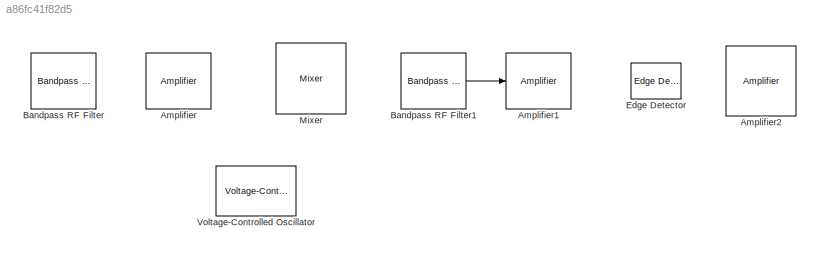
MODEL slx_a86fc41f82d5
KIND model
CONFIG AbsTol = auto
CONFIG FixedStep = auto
CONFIG MaxStep = auto
CONFIG MinStep = auto
CONFIG RelTol = 1e-3
CONFIG SampleTimeConstraint = Unconstrained
CONFIG Solver = VariableStepAuto
CONFIG SolverMode = Auto
CONFIG SolverName = VariableStepAuto
CONFIG StartTime = 0.0
CONFIG StopTime = 10.0
BLOCK [Reference] Amplifier  REF=rfmathmodels1/Amplifier
  Ports = [1, 1]
  SourceBlock = rfmathmodels1/Amplifier
  SourceType = Amplifier
BLOCK [Reference] Amplifier1  REF=rfmathmodels1/Amplifier
  Ports = [1, 1]
  SourceBlock = rfmathmodels1/Amplifier
  SourceType = Amplifier
BLOCK [Reference] Amplifier2  REF=simrfV2elements/Amplifier
  Ports = [0, 0, 0, 0, 0, 1, 1]
  SourceBlock = simrfV2elements/Amplifier
  SourceType = Amplifier
BLOCK [Reference] Bandpass RF Filter  REF=rfmathmodels1/Bandpass RF Filter
  Ports = [1, 1]
  SourceBlock = rfmathmodels1/Bandpass RF Filter
  SourceType = Bandpass RF Filter
BLOCK [Reference] Bandpass RF Filter1  REF=rfmathmodels1/Bandpass RF Filter
  Ports = [1, 1]
  SourceBlock = rfmathmodels1/Bandpass RF Filter
  SourceType = Bandpass RF Filter
BLOCK [Reference] Edge Detector  REF=powerlib_meascontrol/Logic/Edge Detector
  Ports = [1, 1]
  SourceBlock = powerlib_meascontrol/Logic/Edge Detector
  SourceType = Edge Detector
BLOCK [Reference] Mixer  REF=simrfV2elements/Mixer
  Ports = [0, 0, 0, 0, 0, 2, 1]
  SourceBlock = simrfV2elements/Mixer
  SourceType = Mixer
BLOCK [Reference] Voltage-Controlled Oscillator  REF=elec_lib/Integrated Circuits/Voltage-Controlled
Oscillator
  Ports = [0, 0, 0, 0, 0, 2, 2]
  SourceBlock = elec_lib/Integrated Circuits/Voltage-Controlled\nOscillator
  SourceType = Voltage-Controlled\nOscillator
LINE Bandpass RF Filter1:1 -> Amplifier1:1
